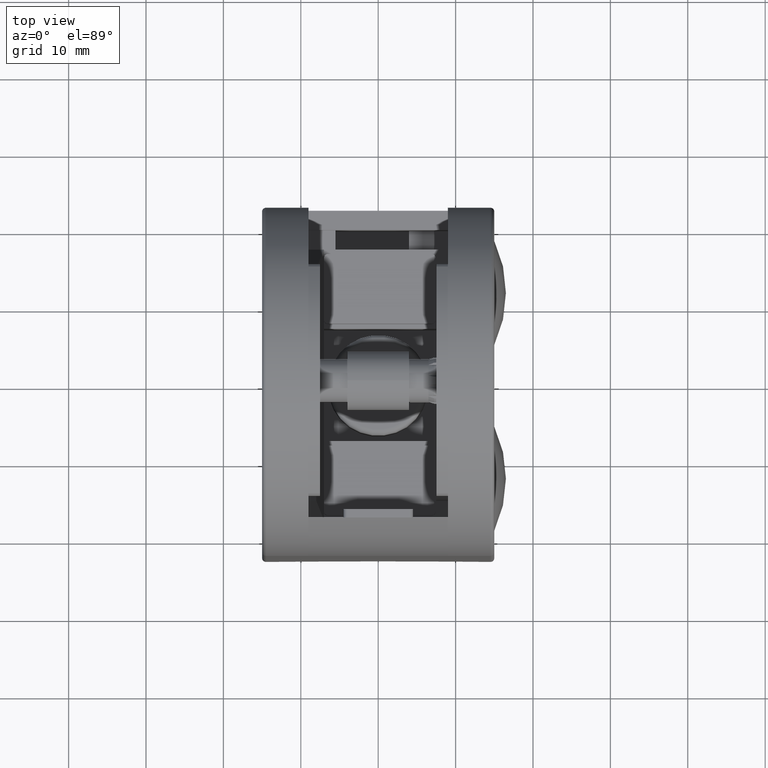
[diagram: clean part render]
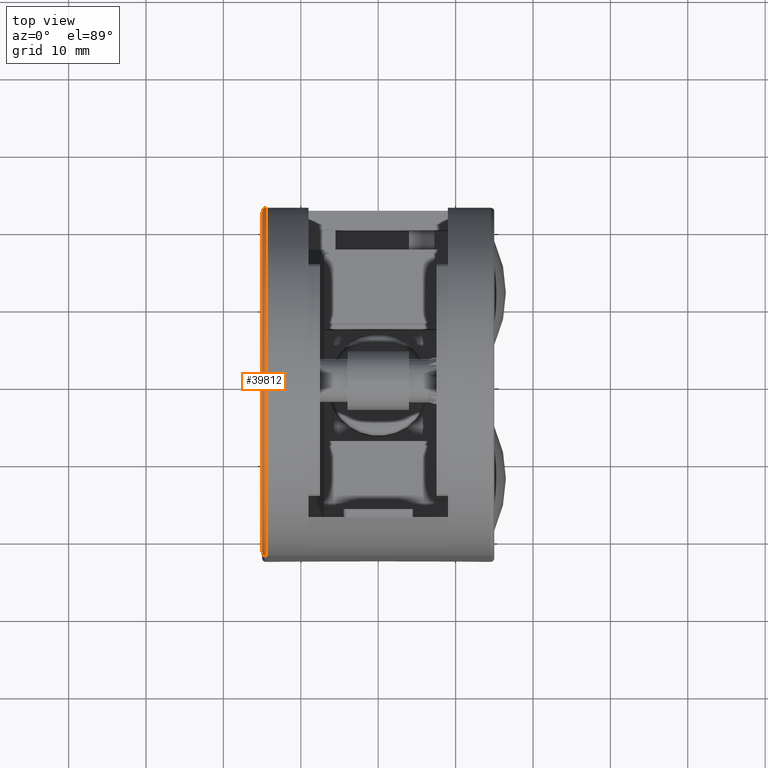
[diagram: same view with one face highlighted and labeled with its STEP entity id]
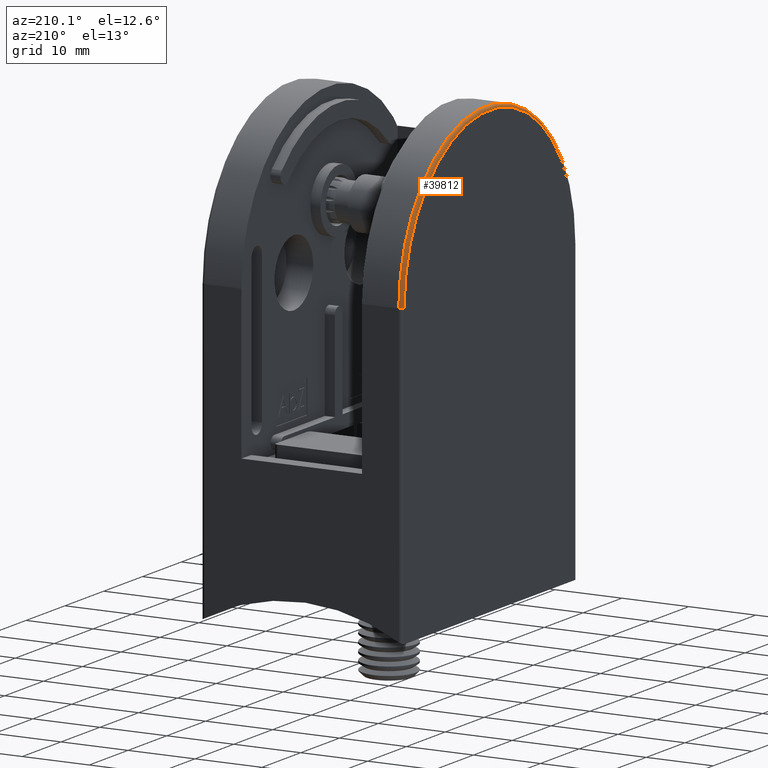
[diagram: same view with one face highlighted and labeled with its STEP entity id]
A machine part, top view. The second image highlights one B-rep face of the part: STEP entity #39812.
A second angle (auxiliary view) of the same face is appended — the face is thin or edge-on in the first view.
In plain terms, the highlighted toroidal blend (fillet) surface has major radius 22 mm and minor (blend) radius 0.5 mm.
Its self-contained STEP definition (entity closure, byte-faithful):
#5714 = DIRECTION ( 'NONE',  ( -0.000000000000000000, -0.000000000000000000, -1.000000000000000000 ) ) ;
#8855 = VERTEX_POINT ( 'NONE', #33927 ) ;
#10993 = FACE_OUTER_BOUND ( 'NONE', #76016, .T. ) ;
#12542 = ORIENTED_EDGE ( 'NONE', *, *, #18731, .F. ) ;
#12645 = DIRECTION ( 'NONE',  ( 0.000000000000000000, 0.000000000000000000, -1.000000000000000000 ) ) ;
#14362 = CIRCLE ( 'NONE', #77203, 0.5000000000000000000 ) ;
#17339 = CIRCLE ( 'NONE', #29862, 22.50000000000001421 ) ;
#18731 = EDGE_CURVE ( 'NONE', #54544, #8855, #40938, .T. ) ;
#22135 = CARTESIAN_POINT ( 'NONE',  ( 0.5000000000000004441, 22.00000000000000711, 40.49999999999998579 ) ) ;
#23423 = AXIS2_PLACEMENT_3D ( 'NONE', #38451, #31555, #12645 ) ;
#26513 = AXIS2_PLACEMENT_3D ( 'NONE', #45974, #45712, #64324 ) ;
#28214 = VERTEX_POINT ( 'NONE', #56433 ) ;
#29862 = AXIS2_PLACEMENT_3D ( 'NONE', #49470, #56166, #73780 ) ;
#31555 = DIRECTION ( 'NONE',  ( 1.000000000000000000, 0.000000000000000000, 0.000000000000000000 ) ) ;
#33927 = CARTESIAN_POINT ( 'NONE',  ( 0.000000000000000000, 22.00000000000000711, 40.49999999999998579 ) ) ;
#38451 = CARTESIAN_POINT ( 'NONE',  ( 0.5000000000000004441, -6.654304323386755867E-15, 40.49999999999997868 ) ) ;
#39812 = ADVANCED_FACE ( 'NONE', ( #10993 ), #66717, .T. ) ;
#40938 = CIRCLE ( 'NONE', #26513, 22.00000000000001421 ) ;
#42137 = EDGE_CURVE ( 'NONE', #28214, #69978, #17339, .T. ) ;
#45712 = DIRECTION ( 'NONE',  ( -1.000000000000000000, -0.000000000000000000, -0.000000000000000000 ) ) ;
#45974 = CARTESIAN_POINT ( 'NONE',  ( 0.000000000000000000, -6.654304323386755867E-15, 40.49999999999997868 ) ) ;
#47245 = CARTESIAN_POINT ( 'NONE',  ( 0.000000000000000000, -22.00000000000002132, 40.49999999999998579 ) ) ;
#47539 = AXIS2_PLACEMENT_3D ( 'NONE', #56615, #5714, #61797 ) ;
#49470 = CARTESIAN_POINT ( 'NONE',  ( 0.5000000000000004441, -6.654304323386755867E-15, 40.49999999999997868 ) ) ;
#52581 = ORIENTED_EDGE ( 'NONE', *, *, #42137, .F. ) ;
#54544 = VERTEX_POINT ( 'NONE', #47245 ) ;
#54554 = EDGE_CURVE ( 'NONE', #28214, #8855, #14362, .T. ) ;
#56166 = DIRECTION ( 'NONE',  ( 1.000000000000000000, 0.000000000000000000, 0.000000000000000000 ) ) ;
#56433 = CARTESIAN_POINT ( 'NONE',  ( 0.5000000000000004441, 22.50000000000000711, 40.49999999999998579 ) ) ;
#56615 = CARTESIAN_POINT ( 'NONE',  ( 0.5000000000000004441, -22.00000000000002132, 40.49999999999998579 ) ) ;
#61797 = DIRECTION ( 'NONE',  ( -1.000000000000000000, 0.000000000000000000, 0.000000000000000000 ) ) ;
#64324 = DIRECTION ( 'NONE',  ( 0.000000000000000000, 0.000000000000000000, -1.000000000000000000 ) ) ;
#64910 = CIRCLE ( 'NONE', #47539, 0.5000000000000000000 ) ;
#66233 = ORIENTED_EDGE ( 'NONE', *, *, #54554, .T. ) ;
#66717 = TOROIDAL_SURFACE ( 'NONE', #23423, 22.00000000000001421, 0.5000000000000000000 ) ;
#69978 = VERTEX_POINT ( 'NONE', #80575 ) ;
#71346 = EDGE_CURVE ( 'NONE', #69978, #54544, #64910, .T. ) ;
#73780 = DIRECTION ( 'NONE',  ( 0.000000000000000000, 0.000000000000000000, -1.000000000000000000 ) ) ;
#76016 = EDGE_LOOP ( 'NONE', ( #66233, #12542, #76292, #52581 ) ) ;
#76292 = ORIENTED_EDGE ( 'NONE', *, *, #71346, .F. ) ;
#77203 = AXIS2_PLACEMENT_3D ( 'NONE', #22135, #78737, #79029 ) ;
#78737 = DIRECTION ( 'NONE',  ( 0.000000000000000000, -0.000000000000000000, 1.000000000000000000 ) ) ;
#79029 = DIRECTION ( 'NONE',  ( 1.000000000000000000, 0.000000000000000000, 0.000000000000000000 ) ) ;
#80575 = CARTESIAN_POINT ( 'NONE',  ( 0.5000000000000004441, -22.50000000000002132, 40.49999999999998579 ) ) ;